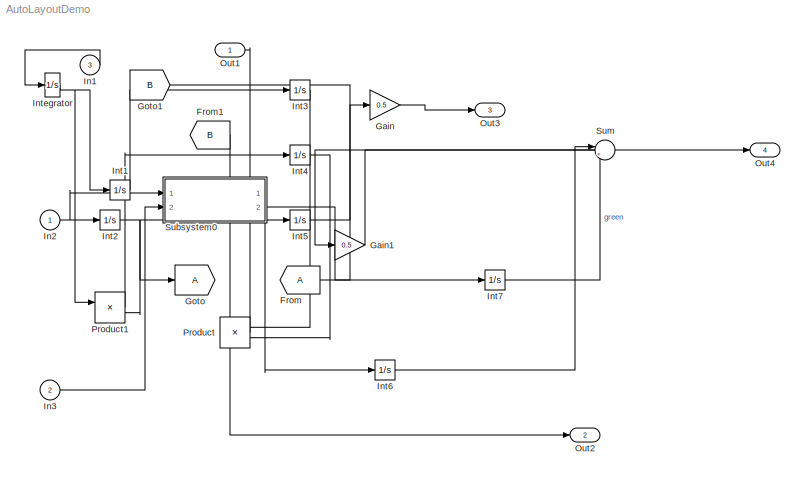
MODEL AutoLayoutDemo
KIND model
BLOCK [From] From
  GotoTag = A
  SID = 13
BLOCK [From] From1
  GotoTag = B
  SID = 52
BLOCK [Gain] Gain
  Gain = 0.5
  OutDataTypeStr = Inherit: Inherit via internal rule
  ParamDataTypeStr = Inherit: Inherit via internal rule
  SID = 48
  SaturateOnIntegerOverflow = off
BLOCK [Gain] Gain1
  Gain = 0.5
  OutDataTypeStr = Inherit: Inherit via internal rule
  ParamDataTypeStr = Inherit: Inherit via internal rule
  SID = 50
  SaturateOnIntegerOverflow = off
BLOCK [Goto] Goto
  GotoTag = A
  SID = 12
  TagVisibility = local
BLOCK [Goto] Goto1
  GotoTag = B
  SID = 51
  TagVisibility = local
BLOCK [Inport] In1
  IconDisplay = Port number
  Port = 3
  SID = 1
BLOCK [Inport] In2
  IconDisplay = Port number
  SID = 9
BLOCK [Inport] In3
  IconDisplay = Port number
  Port = 2
  SID = 24
BLOCK [Integrator] Int1
  Ports = [1, 1]
  SID = 2
BLOCK [Integrator] Int2
  Ports = [1, 1]
  SID = 3
BLOCK [Integrator] Int3
  Ports = [1, 1]
  SID = 4
BLOCK [Integrator] Int4
  Ports = [1, 1]
  SID = 5
BLOCK [Integrator] Int5
  Ports = [1, 1]
  SID = 10
BLOCK [Integrator] Int6
  Ports = [1, 1]
  SID = 25
BLOCK [Integrator] Int7
  Ports = [1, 1]
  SID = 26
BLOCK [Integrator] Integrator
  Ports = [1, 1]
  SID = 54
BLOCK [Outport] Out1
  IconDisplay = Port number
  SID = 7
BLOCK [Outport] Out2
  IconDisplay = Port number
  Port = 2
  SID = 11
BLOCK [Outport] Out3
  IconDisplay = Port number
  Port = 3
  SID = 14
BLOCK [Outport] Out4
  IconDisplay = Port number
  Port = 4
  SID = 15
BLOCK [Product] Product
  InputSameDT = off
  OutDataTypeStr = Inherit: Inherit via internal rule
  Ports = [2, 1]
  SID = 6
  SaturateOnIntegerOverflow = off
BLOCK [Product] Product1
  InputSameDT = off
  OutDataTypeStr = Inherit: Inherit via internal rule
  Ports = [2, 1]
  SID = 8
  SaturateOnIntegerOverflow = off
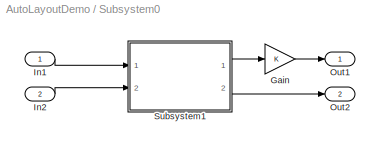
BLOCK [SubSystem] Subsystem0
  FunctionWithSeparateData = off
  MaskHideContents = off
  MinAlgLoopOccurrences = off
  Opaque = off
  Ports = [2, 2]
  PropExecContextOutsideSubsystem = off
  RTWSystemCode = Auto
  RequestExecContextInheritance = off
  SID = 34
BLOCK [Gain] Subsystem0/Gain
  OutDataTypeStr = Inherit: Inherit via internal rule
  ParamDataTypeStr = Inherit: Inherit via internal rule
  SID = 47
  SaturateOnIntegerOverflow = off
BLOCK [Inport] Subsystem0/In1
  IconDisplay = Port number
  SID = 35
BLOCK [Inport] Subsystem0/In2
  IconDisplay = Port number
  Port = 2
  SID = 40
BLOCK [Outport] Subsystem0/Out1
  IconDisplay = Port number
  SID = 36
BLOCK [Outport] Subsystem0/Out2
  IconDisplay = Port number
  Port = 2
  SID = 43
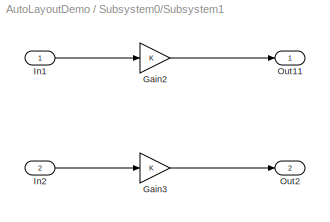
BLOCK [SubSystem] Subsystem0/Subsystem1
  FunctionWithSeparateData = off
  MaskHideContents = off
  MinAlgLoopOccurrences = off
  Opaque = off
  Ports = [2, 2]
  PropExecContextOutsideSubsystem = off
  RTWSystemCode = Auto
  RequestExecContextInheritance = off
  SID = 37
BLOCK [Gain] Subsystem0/Subsystem1/Gain2
  OutDataTypeStr = Inherit: Inherit via internal rule
  ParamDataTypeStr = Inherit: Inherit via internal rule
  SID = 44
  SaturateOnIntegerOverflow = off
BLOCK [Gain] Subsystem0/Subsystem1/Gain3
  OutDataTypeStr = Inherit: Inherit via internal rule
  ParamDataTypeStr = Inherit: Inherit via internal rule
  SID = 46
  SaturateOnIntegerOverflow = off
BLOCK [Inport] Subsystem0/Subsystem1/In1
  IconDisplay = Port number
  SID = 38
BLOCK [Inport] Subsystem0/Subsystem1/In2
  IconDisplay = Port number
  Port = 2
  SID = 41
BLOCK [Outport] Subsystem0/Subsystem1/Out11
  IconDisplay = Port number
  SID = 39
BLOCK [Outport] Subsystem0/Subsystem1/Out2
  IconDisplay = Port number
  Port = 2
  SID = 42
BLOCK [Sum] Sum
  IconShape = round
  InputSameDT = off
  Inputs = |++
  OutDataTypeStr = Inherit: Inherit via internal rule
  Ports = [2, 1]
  SID = 49
  SaturateOnIntegerOverflow = off
LINE From1:1 -> Out2:1
LINE From:1 -> Gain:1
LINE Gain1:1 -> Out4:1
LINE Gain:1 -> Out3:1
LINE In1:1 -> Integrator:1
NET In2:1 -> Int2:1, Subsystem0:1
LINE In3:1 -> Subsystem0:2
LINE Int1:1 -> Int3:1
NET Int2:1 -> Goto:1, Int5:1, Product1:2
LINE Int3:1 -> Product:1
LINE Int4:1 -> Product:2
LINE Int5:1 -> Goto1:1
LINE Int6:1 -> Sum:1
LINE Int7:1 -> Sum:2
NET Integrator:1 -> Int1:1, Product1:1
LINE Product1:1 -> Int4:1
LINE Product:1 -> Out1:1
LINE Subsystem0/Gain:1 -> Subsystem0/Out1:1
LINE Subsystem0/In1:1 -> Subsystem0/Subsystem1:1
LINE Subsystem0/In2:1 -> Subsystem0/Subsystem1:2
LINE Subsystem0/Subsystem1/Gain2:1 -> Subsystem0/Subsystem1/Out11:1
LINE Subsystem0/Subsystem1/Gain3:1 -> Subsystem0/Subsystem1/Out2:1
LINE Subsystem0/Subsystem1/In1:1 -> Subsystem0/Subsystem1/Gain2:1
LINE Subsystem0/Subsystem1/In2:1 -> Subsystem0/Subsystem1/Gain3:1
LINE Subsystem0/Subsystem1:1 -> Subsystem0/Gain:1
LINE Subsystem0/Subsystem1:2 -> Subsystem0/Out2:1
LINE Subsystem0:1 -> Int6:1
LINE Subsystem0:2 -> Int7:1
LINE Sum:1 -> Gain1:1
note: NET lines group one-source signal fan-out (src -> all destinations, sorted); 1:1 wires keep LINE
